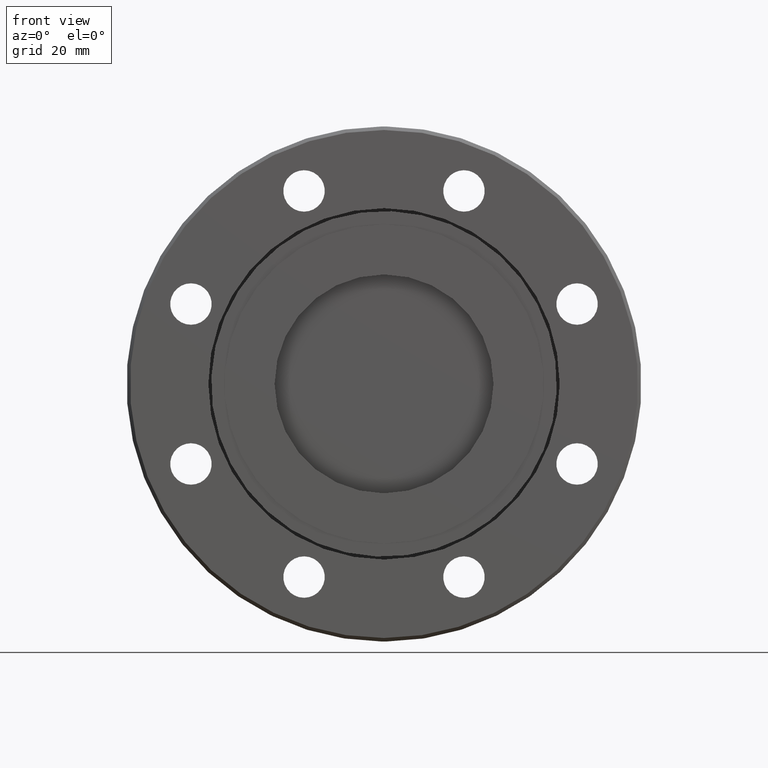
[diagram: clean part render]
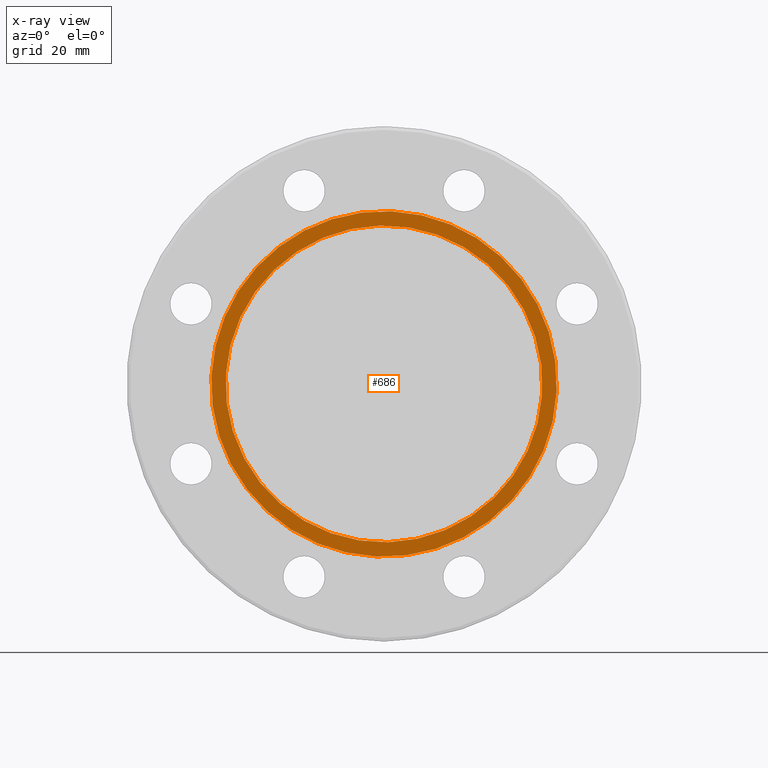
[diagram: x-ray — body ghosted, one internal face saturated and labeled with its STEP entity id]
A machine part, front view, then the same camera in x-ray: the body is ghosted and one INTERNAL B-rep face — a face not visible from any outside direction — is saturated and labeled: STEP entity #686.
In plain terms, the highlighted planar face has unit normal (-0, 1, -0).
Its self-contained STEP definition (entity closure, byte-faithful):
#21 = CARTESIAN_POINT ( 'NONE',  ( 1.311703700826177200, 0.4250000000000000400, 0.4123813783852400300 ) ) ;
#200 = EDGE_LOOP ( 'NONE', ( #2437, #2466 ) ) ;
#348 = AXIS2_PLACEMENT_3D ( 'NONE', #2052, #2038, #2030 ) ;
#420 = AXIS2_PLACEMENT_3D ( 'NONE', #1937, #1976, #1975 ) ;
#455 = CIRCLE ( 'NONE', #420, 1.500000000000000400 ) ;
#471 = AXIS2_PLACEMENT_3D ( 'NONE', #1348, #1420, #1408 ) ;
#477 = AXIS2_PLACEMENT_3D ( 'NONE', #1177, #1175, #1174 ) ;
#592 = CIRCLE ( 'NONE', #348, 1.500000000000000400 ) ;
#633 = CIRCLE ( 'NONE', #477, 1.375000000000000000 ) ;
#686 = ADVANCED_FACE ( 'NONE', ( #1433, #1421 ), #1407, .T. ) ;
#910 = VERTEX_POINT ( 'NONE', #21 ) ;
#991 = VERTEX_POINT ( 'NONE', #1907 ) ;
#1174 = DIRECTION ( 'NONE',  ( 0.9539663278735833800, 4.966996352116842000E-017, 0.2999137297347200200 ) ) ;
#1175 = DIRECTION ( 'NONE',  ( -6.505213034913025100E-018, 1.000000000000000000, -5.551115123125781500E-017 ) ) ;
#1177 = CARTESIAN_POINT ( 'NONE',  ( 1.235990476633462400E-018, 0.4249999999999999900, 1.054711873393902300E-017 ) ) ;
#1348 = CARTESIAN_POINT ( 'NONE',  ( 0.4123813783852399200, 0.4249999999999998200, -1.311703700826177600 ) ) ;
#1352 = VERTEX_POINT ( 'NONE', #1477 ) ;
#1358 = VERTEX_POINT ( 'NONE', #1465 ) ;
#1407 = PLANE ( 'NONE',  #471 ) ;
#1408 = DIRECTION ( 'NONE',  ( 0.9539663278735833800, 2.905661822261151300E-017, 0.2999137297347199700 ) ) ;
#1420 = DIRECTION ( 'NONE',  ( -1.242200566334700300E-017, 1.000000000000000000, -5.737130844374140000E-017 ) ) ;
#1421 = FACE_BOUND ( 'NONE', #2542, .T. ) ;
#1433 = FACE_OUTER_BOUND ( 'NONE', #200, .T. ) ;
#1465 = CARTESIAN_POINT ( 'NONE',  ( -1.430949491810375100, 0.4249999999999999300, -0.4498705946020801800 ) ) ;
#1477 = CARTESIAN_POINT ( 'NONE',  ( -1.311703700826177200, 0.4249999999999999900, -0.4123813783852401400 ) ) ;
#1650 = DIRECTION ( 'NONE',  ( 0.9539663278735833800, 4.966996352116842000E-017, 0.2999137297347200200 ) ) ;
#1653 = DIRECTION ( 'NONE',  ( -6.505213034913025100E-018, 1.000000000000000000, -5.551115123125781500E-017 ) ) ;
#1655 = CARTESIAN_POINT ( 'NONE',  ( 1.235990476633462400E-018, 0.4249999999999999900, 1.054711873393902300E-017 ) ) ;
#1907 = CARTESIAN_POINT ( 'NONE',  ( 1.430949491810375600, 0.4250000000000000400, 0.4498705946020800700 ) ) ;
#1937 = CARTESIAN_POINT ( 'NONE',  ( 1.235990476633462400E-018, 0.4249999999999999900, 1.054711873393902300E-017 ) ) ;
#1975 = DIRECTION ( 'NONE',  ( 0.9539663278735833800, 4.553079989440437500E-017, 0.2999137297347199700 ) ) ;
#1976 = DIRECTION ( 'NONE',  ( -6.505213034913025100E-018, 1.000000000000000000, -5.551115123125781500E-017 ) ) ;
#2030 = DIRECTION ( 'NONE',  ( 0.9539663278735833800, 4.553079989440437500E-017, 0.2999137297347199700 ) ) ;
#2038 = DIRECTION ( 'NONE',  ( -6.505213034913025100E-018, 1.000000000000000000, -5.551115123125781500E-017 ) ) ;
#2052 = CARTESIAN_POINT ( 'NONE',  ( 1.235990476633462400E-018, 0.4249999999999999900, 1.054711873393902300E-017 ) ) ;
#2110 = AXIS2_PLACEMENT_3D ( 'NONE', #1655, #1653, #1650 ) ;
#2125 = CIRCLE ( 'NONE', #2110, 1.375000000000000000 ) ;
#2213 = EDGE_CURVE ( 'NONE', #910, #1352, #633, .T. ) ;
#2217 = EDGE_CURVE ( 'NONE', #991, #1358, #592, .T. ) ;
#2239 = EDGE_CURVE ( 'NONE', #1358, #991, #455, .T. ) ;
#2292 = EDGE_CURVE ( 'NONE', #1352, #910, #2125, .T. ) ;
#2342 = ORIENTED_EDGE ( 'NONE', *, *, #2213, .F. ) ;
#2344 = ORIENTED_EDGE ( 'NONE', *, *, #2292, .F. ) ;
#2437 = ORIENTED_EDGE ( 'NONE', *, *, #2217, .T. ) ;
#2466 = ORIENTED_EDGE ( 'NONE', *, *, #2239, .T. ) ;
#2542 = EDGE_LOOP ( 'NONE', ( #2342, #2344 ) ) ;